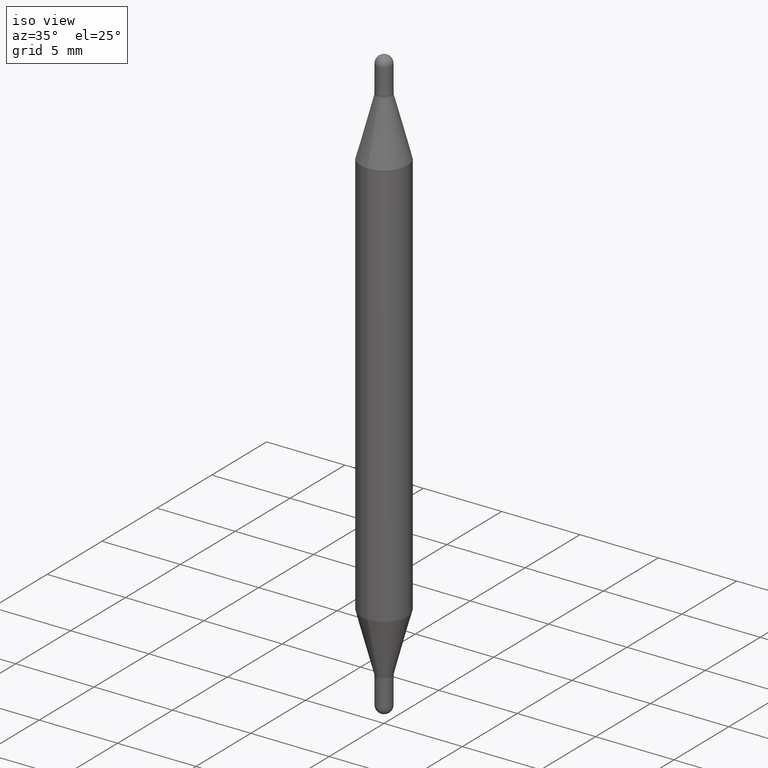
[diagram: clean part render]
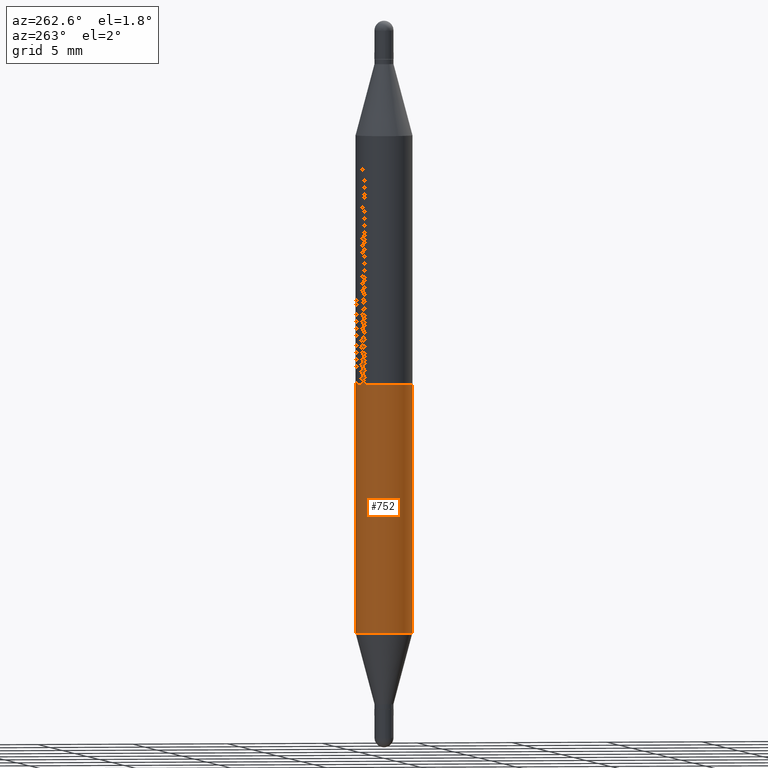
[diagram: tour spotlight — one face highlighted and labeled with its STEP entity id]
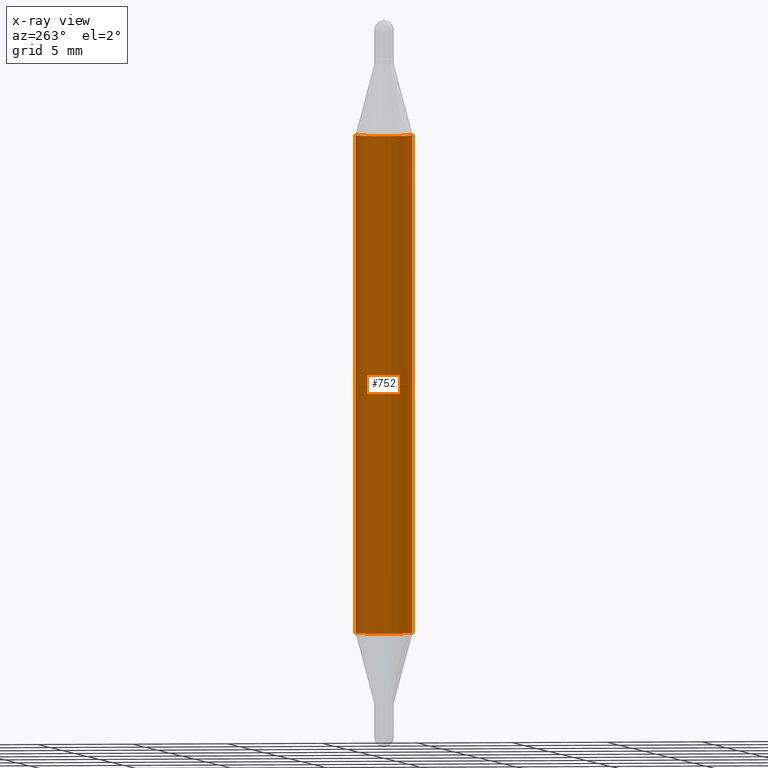
[diagram: x-ray of the same camera — body ghosted, this tour face saturated]
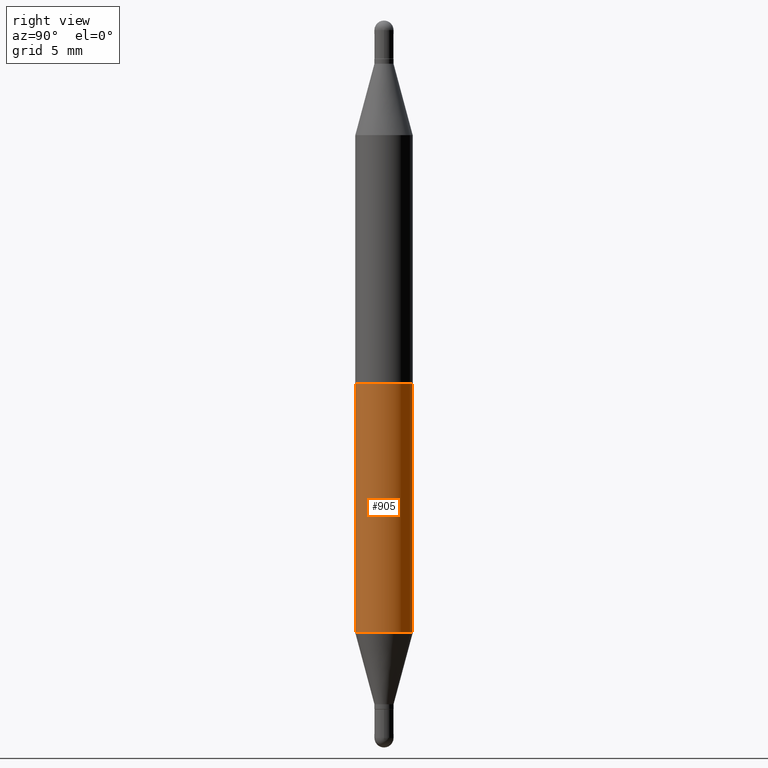
[diagram: tour spotlight — one face highlighted and labeled with its STEP entity id]
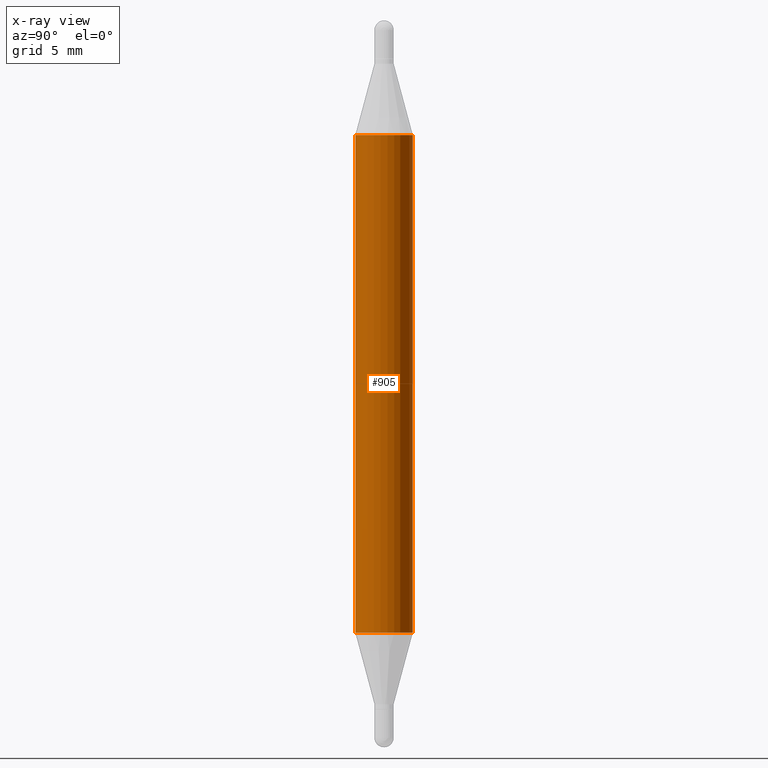
[diagram: x-ray of the same camera — body ghosted, this tour face saturated]
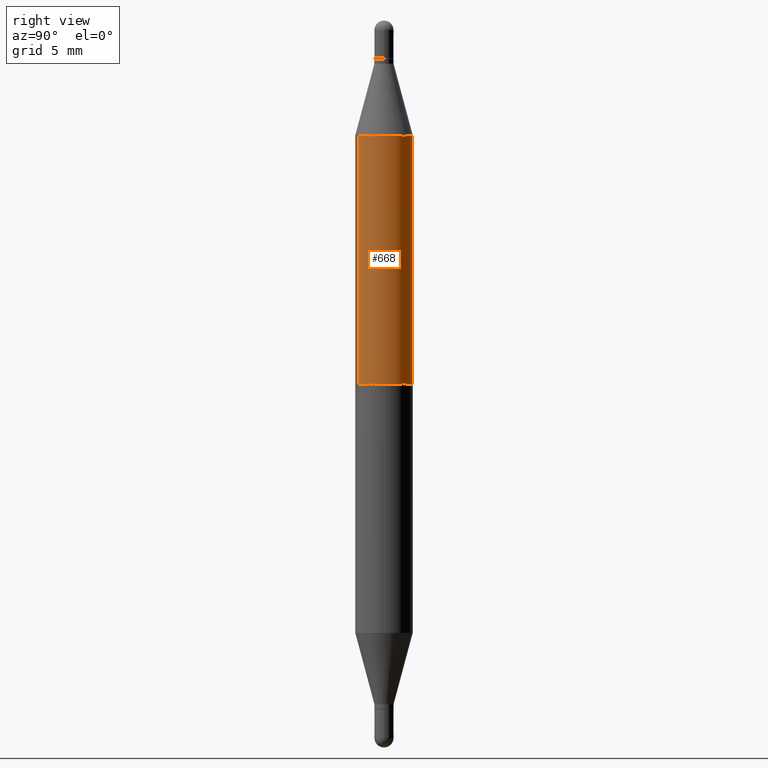
[diagram: tour spotlight — one face highlighted and labeled with its STEP entity id]
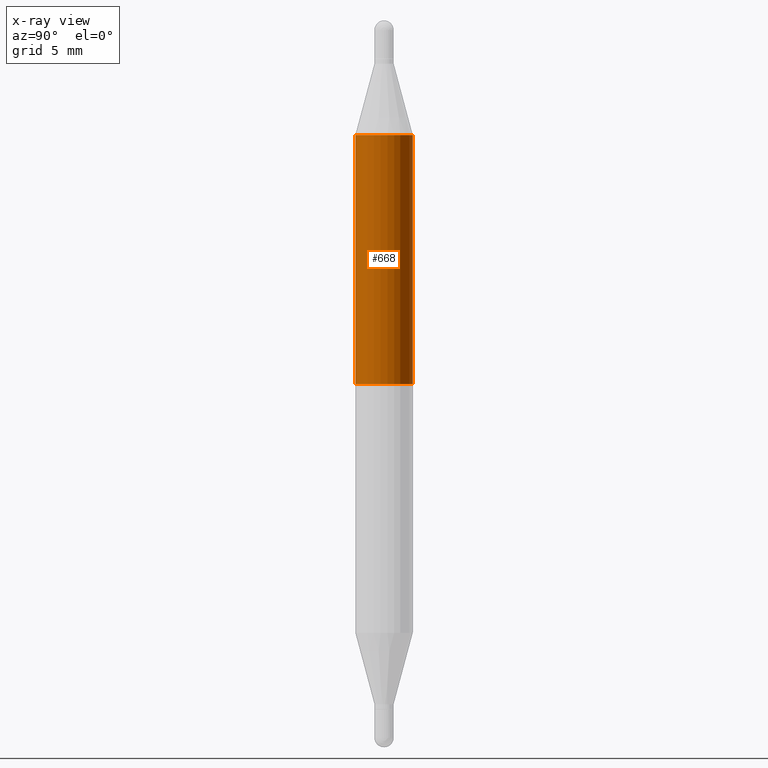
[diagram: x-ray of the same camera — body ghosted, this tour face saturated]
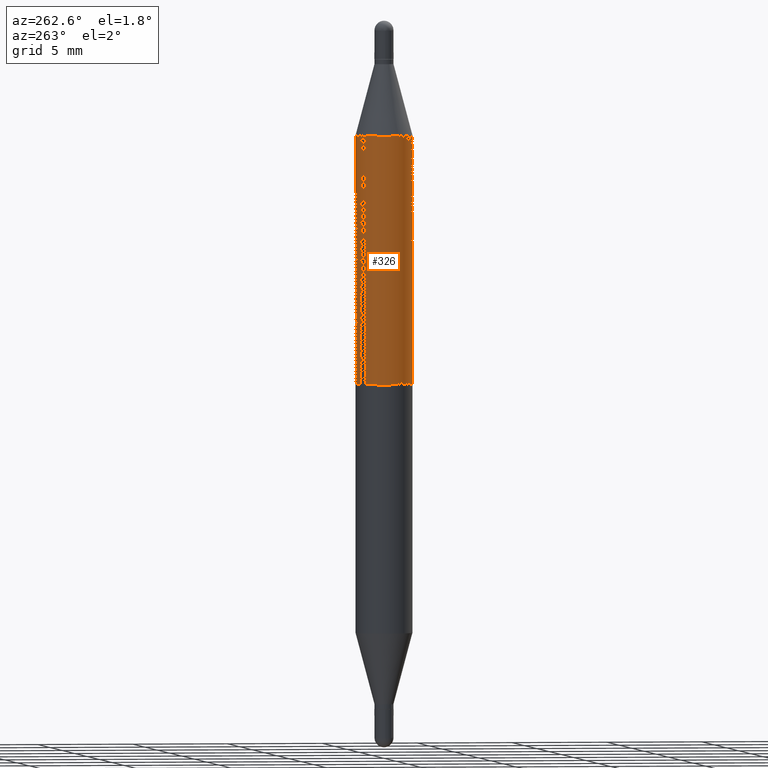
[diagram: tour spotlight — one face highlighted and labeled with its STEP entity id]
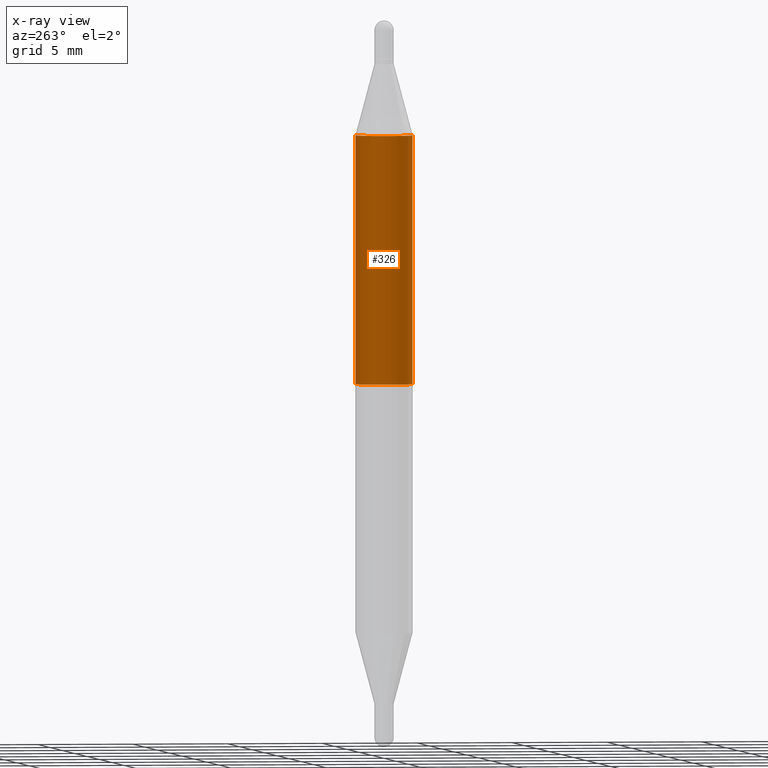
[diagram: x-ray of the same camera — body ghosted, this tour face saturated]
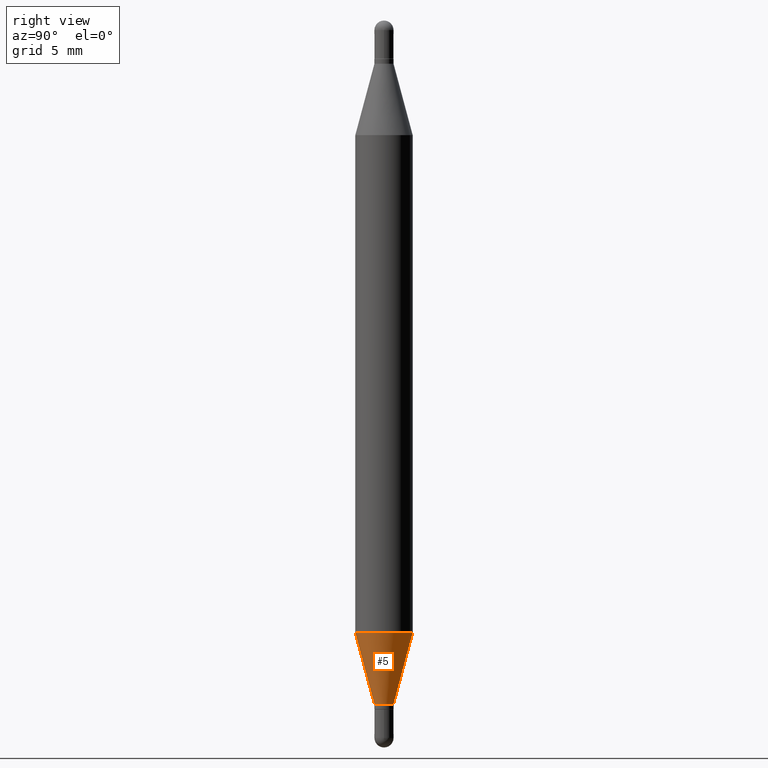
[diagram: tour spotlight — one face highlighted and labeled with its STEP entity id]
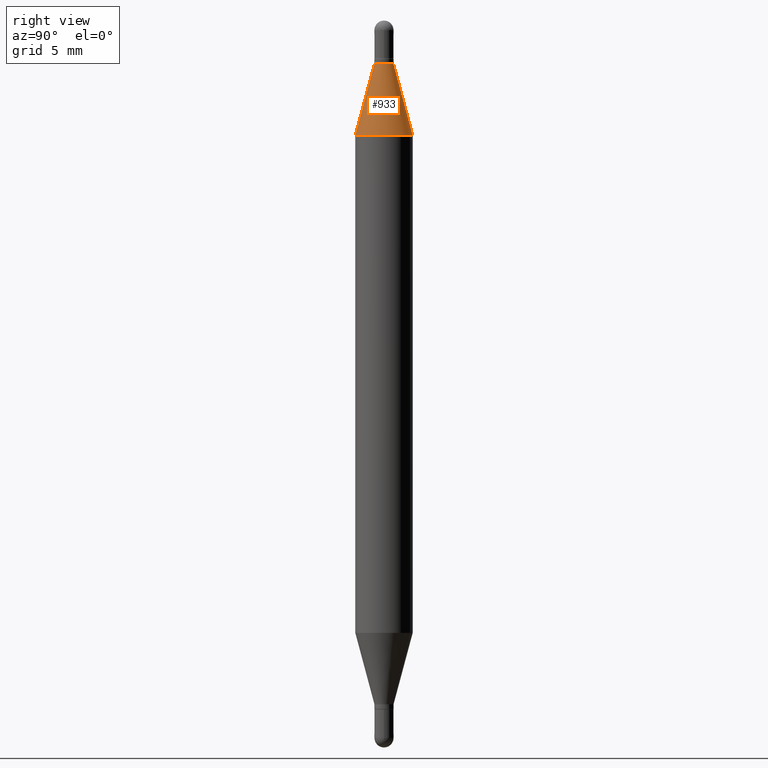
[diagram: tour spotlight — one face highlighted and labeled with its STEP entity id]
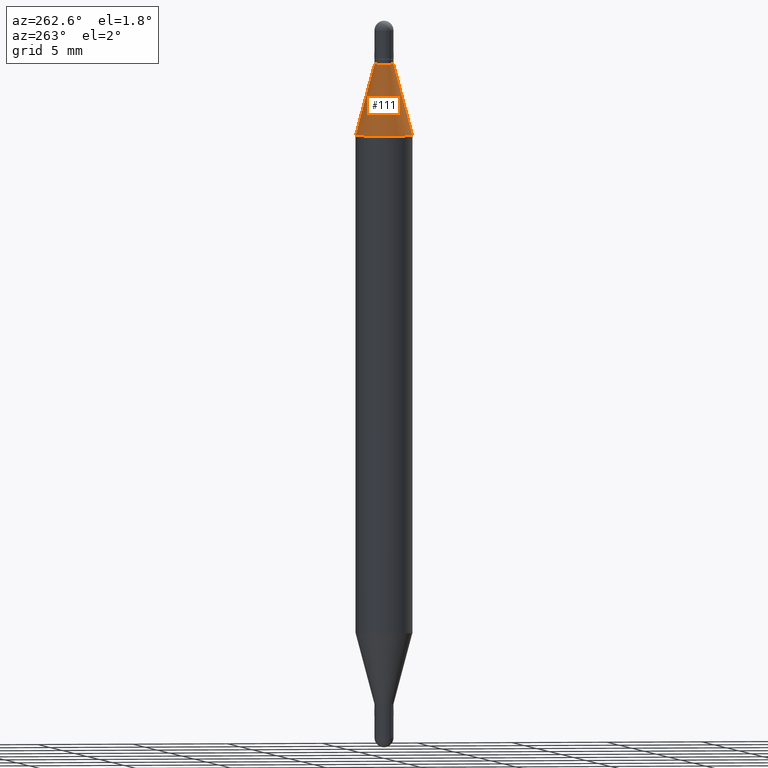
[diagram: tour spotlight — one face highlighted and labeled with its STEP entity id]
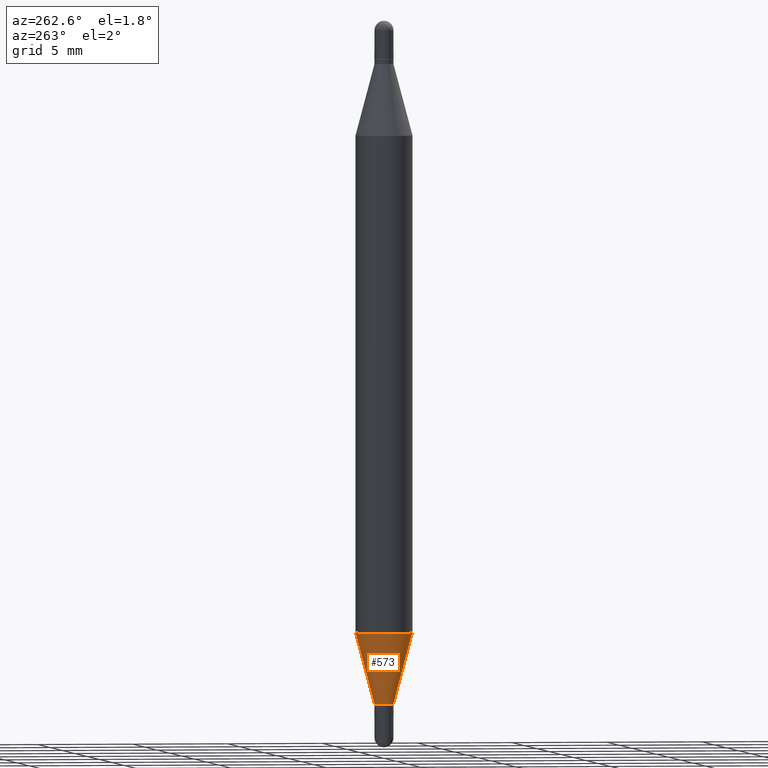
[diagram: tour spotlight — one face highlighted and labeled with its STEP entity id]
A machine part: a face-by-face anatomy tour. The part has 41 B-rep faces; the first image is the clean iso view, then the 8 largest visible faces are spotlighted one at a time (largest first), each with its STEP entity span.

Face 1 — auxiliary view, entity #752. An x-ray twin of the same camera follows (body ghosted, this face saturated) — the face is partly hidden behind the body. In plain terms, the highlighted cylindrical surface (edge-blend (fillet) strip) has radius 1.4999 mm, axis along (-0, -0, -1).
Definition (entity closure, byte-faithful):
#11 = VECTOR ( 'NONE', #577, 39.37007874015748143 ) ;
#42 = ORIENTED_EDGE ( 'NONE', *, *, #1108, .T. ) ;
#67 = CIRCLE ( 'NONE', #122, 0.05905000000000000526 ) ;
#73 = ORIENTED_EDGE ( 'NONE', *, *, #435, .F. ) ;
#89 = EDGE_CURVE ( 'NONE', #344, #598, #229, .T. ) ;
#122 = AXIS2_PLACEMENT_3D ( 'NONE', #245, #333, #937 ) ;
#129 = EDGE_LOOP ( 'NONE', ( #73, #1044, #42, #150 ) ) ;
#150 = ORIENTED_EDGE ( 'NONE', *, *, #1054, .F. ) ;
#174 = DIRECTION ( 'NONE',  ( -6.982962677686265922E-15, -1.000000000000000000, 4.626330217890367758E-15 ) ) ;
#229 = LINE ( 'NONE', #1010, #11 ) ;
#232 = CARTESIAN_POINT ( 'NONE',  ( -4.123439461173741313E-16, -0.05905000000000523025, -1.496099999999999541 ) ) ;
#245 = CARTESIAN_POINT ( 'NONE',  ( 3.090553871874308525E-29, -4.387706119684229596E-15, -1.260243800722164131 ) ) ;
#333 = DIRECTION ( 'NONE',  ( -2.452346022335767416E-29, 3.481632773888607425E-15, 1.000000000000000000 ) ) ;
#344 = VERTEX_POINT ( 'NONE', #769 ) ;
#345 = CYLINDRICAL_SURFACE ( 'NONE', #1039, 0.05905000000000001914 ) ;
#348 = CARTESIAN_POINT ( 'NONE',  ( 0.000000000000000000, -5.214728217544379106E-15, -1.496099999999999985 ) ) ;
#389 = CARTESIAN_POINT ( 'NONE',  ( 4.051124067684272586E-16, 0.05904999999999561988, -1.260243800722164353 ) ) ;
#434 = AXIS2_PLACEMENT_3D ( 'NONE', #531, #978, #875 ) ;
#435 = EDGE_CURVE ( 'NONE', #344, #949, #906, .T. ) ;
#531 = CARTESIAN_POINT ( 'NONE',  ( 3.090553871874308525E-29, -8.171540637024477937E-16, -0.2358561992778358263 ) ) ;
#577 = DIRECTION ( 'NONE',  ( -2.452346022335767416E-29, -3.489463031932366411E-15, -1.000000000000000000 ) ) ;
#596 = DIRECTION ( 'NONE',  ( -2.452346022335767416E-29, -3.489463031932366411E-15, -1.000000000000000000 ) ) ;
#598 = VERTEX_POINT ( 'NONE', #389 ) ;
#752 = ADVANCED_FACE ( 'NONE', ( #839 ), #345, .T. ) ;
#769 = CARTESIAN_POINT ( 'NONE',  ( 4.051124067684397324E-16, 0.05904999999999917953, -0.2358561992778360206 ) ) ;
#839 = FACE_OUTER_BOUND ( 'NONE', #129, .T. ) ;
#875 = DIRECTION ( 'NONE',  ( -6.982962677686265922E-15, -1.000000000000000000, 3.469747663417777002E-15 ) ) ;
#897 = LINE ( 'NONE', #232, #950 ) ;
#906 = CIRCLE ( 'NONE', #434, 0.05905000000000000526 ) ;
#912 = DIRECTION ( 'NONE',  ( -2.452346022335767416E-29, -3.489463031932366411E-15, -1.000000000000000000 ) ) ;
#937 = DIRECTION ( 'NONE',  ( -6.982962677686265922E-15, -1.000000000000000000, 4.626330217890369336E-15 ) ) ;
#949 = VERTEX_POINT ( 'NONE', #1089 ) ;
#950 = VECTOR ( 'NONE', #912, 39.37007874015748143 ) ;
#978 = DIRECTION ( 'NONE',  ( 2.452346022335767416E-29, 3.489463031932366411E-15, 1.000000000000000000 ) ) ;
#1010 = CARTESIAN_POINT ( 'NONE',  ( 4.051124067684090161E-16, 0.05904999999999480109, -1.496100000000000207 ) ) ;
#1023 = VERTEX_POINT ( 'NONE', #1093 ) ;
#1039 = AXIS2_PLACEMENT_3D ( 'NONE', #348, #596, #174 ) ;
#1044 = ORIENTED_EDGE ( 'NONE', *, *, #89, .T. ) ;
#1054 = EDGE_CURVE ( 'NONE', #949, #1023, #897, .T. ) ;
#1089 = CARTESIAN_POINT ( 'NONE',  ( -4.123439461173431192E-16, -0.05905000000000081711, -0.2358561992778356042 ) ) ;
#1093 = CARTESIAN_POINT ( 'NONE',  ( -4.123439461173431685E-16, -0.05905000000000439758, -1.260243800722163909 ) ) ;
#1108 = EDGE_CURVE ( 'NONE', #598, #1023, #67, .T. ) ;

Face 2 — right view, entity #905. An x-ray twin of the same camera follows (body ghosted, this face saturated) — the face is partly hidden behind the body. In plain terms, the highlighted cylindrical surface (edge-blend (fillet) strip) has radius 1.4999 mm, axis along (-0, -0, -1).
Definition (entity closure, byte-faithful):
#11 = VECTOR ( 'NONE', #577, 39.37007874015748143 ) ;
#28 = CIRCLE ( 'NONE', #366, 0.05905000000000000526 ) ;
#43 = ORIENTED_EDGE ( 'NONE', *, *, #1054, .T. ) ;
#89 = EDGE_CURVE ( 'NONE', #344, #598, #229, .T. ) ;
#115 = CYLINDRICAL_SURFACE ( 'NONE', #350, 0.05905000000000001914 ) ;
#180 = ORIENTED_EDGE ( 'NONE', *, *, #560, .T. ) ;
#183 = AXIS2_PLACEMENT_3D ( 'NONE', #249, #869, #584 ) ;
#229 = LINE ( 'NONE', #1010, #11 ) ;
#232 = CARTESIAN_POINT ( 'NONE',  ( -4.123439461173741313E-16, -0.05905000000000523025, -1.496099999999999541 ) ) ;
#249 = CARTESIAN_POINT ( 'NONE',  ( 3.090553871874308525E-29, -8.171540637024477937E-16, -0.2358561992778358263 ) ) ;
#279 = FACE_OUTER_BOUND ( 'NONE', #677, .T. ) ;
#344 = VERTEX_POINT ( 'NONE', #769 ) ;
#350 = AXIS2_PLACEMENT_3D ( 'NONE', #519, #433, #802 ) ;
#366 = AXIS2_PLACEMENT_3D ( 'NONE', #474, #827, #814 ) ;
#389 = CARTESIAN_POINT ( 'NONE',  ( 4.051124067684272586E-16, 0.05904999999999561988, -1.260243800722164353 ) ) ;
#433 = DIRECTION ( 'NONE',  ( -2.452346022335767416E-29, -3.489463031932366411E-15, -1.000000000000000000 ) ) ;
#465 = ORIENTED_EDGE ( 'NONE', *, *, #1096, .F. ) ;
#474 = CARTESIAN_POINT ( 'NONE',  ( 3.090553871874308525E-29, -4.387706119684229596E-15, -1.260243800722164131 ) ) ;
#519 = CARTESIAN_POINT ( 'NONE',  ( 0.000000000000000000, -5.214728217544379106E-15, -1.496099999999999985 ) ) ;
#560 = EDGE_CURVE ( 'NONE', #1023, #598, #28, .T. ) ;
#577 = DIRECTION ( 'NONE',  ( -2.452346022335767416E-29, -3.489463031932366411E-15, -1.000000000000000000 ) ) ;
#584 = DIRECTION ( 'NONE',  ( -6.982962677686265922E-15, -1.000000000000000000, 3.469747663417777002E-15 ) ) ;
#598 = VERTEX_POINT ( 'NONE', #389 ) ;
#602 = CIRCLE ( 'NONE', #183, 0.05905000000000000526 ) ;
#677 = EDGE_LOOP ( 'NONE', ( #1074, #465, #43, #180 ) ) ;
#769 = CARTESIAN_POINT ( 'NONE',  ( 4.051124067684397324E-16, 0.05904999999999917953, -0.2358561992778360206 ) ) ;
#802 = DIRECTION ( 'NONE',  ( -6.982962677686265922E-15, -1.000000000000000000, 4.626330217890367758E-15 ) ) ;
#814 = DIRECTION ( 'NONE',  ( -6.982962677686265922E-15, -1.000000000000000000, 4.626330217890369336E-15 ) ) ;
#827 = DIRECTION ( 'NONE',  ( -2.452346022335767416E-29, 3.481632773888607425E-15, 1.000000000000000000 ) ) ;
#869 = DIRECTION ( 'NONE',  ( 2.452346022335767416E-29, 3.489463031932366411E-15, 1.000000000000000000 ) ) ;
#897 = LINE ( 'NONE', #232, #950 ) ;
#905 = ADVANCED_FACE ( 'NONE', ( #279 ), #115, .T. ) ;
#912 = DIRECTION ( 'NONE',  ( -2.452346022335767416E-29, -3.489463031932366411E-15, -1.000000000000000000 ) ) ;
#949 = VERTEX_POINT ( 'NONE', #1089 ) ;
#950 = VECTOR ( 'NONE', #912, 39.37007874015748143 ) ;
#1010 = CARTESIAN_POINT ( 'NONE',  ( 4.051124067684090161E-16, 0.05904999999999480109, -1.496100000000000207 ) ) ;
#1023 = VERTEX_POINT ( 'NONE', #1093 ) ;
#1054 = EDGE_CURVE ( 'NONE', #949, #1023, #897, .T. ) ;
#1074 = ORIENTED_EDGE ( 'NONE', *, *, #89, .F. ) ;
#1089 = CARTESIAN_POINT ( 'NONE',  ( -4.123439461173431192E-16, -0.05905000000000081711, -0.2358561992778356042 ) ) ;
#1093 = CARTESIAN_POINT ( 'NONE',  ( -4.123439461173431685E-16, -0.05905000000000439758, -1.260243800722163909 ) ) ;
#1096 = EDGE_CURVE ( 'NONE', #949, #344, #602, .T. ) ;

Face 3 — right view, entity #668. An x-ray twin of the same camera follows (body ghosted, this face saturated) — the face is partly hidden behind the body. In plain terms, the highlighted cylindrical surface (edge-blend (fillet) strip) has radius 1.4999 mm, axis along (-0, -0, -1).
Definition (entity closure, byte-faithful):
#1 = DIRECTION ( 'NONE',  ( -2.452346022335767416E-29, -3.489463031932366411E-15, -1.000000000000000000 ) ) ;
#6 = DIRECTION ( 'NONE',  ( 2.452346022335767416E-29, 3.489463031932366411E-15, 1.000000000000000000 ) ) ;
#250 = CARTESIAN_POINT ( 'NONE',  ( 4.051124067684397324E-16, 0.05904999999999917953, -0.2358561992778360206 ) ) ;
#259 = ORIENTED_EDGE ( 'NONE', *, *, #1036, .F. ) ;
#275 = EDGE_CURVE ( 'NONE', #551, #747, #1058, .T. ) ;
#296 = CARTESIAN_POINT ( 'NONE',  ( -4.123439461173741313E-16, -0.05905000000000523025, -1.496099999999999541 ) ) ;
#436 = CARTESIAN_POINT ( 'NONE',  ( 3.090553871874308525E-29, -8.171540637024477937E-16, -0.2358561992778358263 ) ) ;
#492 = CYLINDRICAL_SURFACE ( 'NONE', #798, 0.05905000000000001914 ) ;
#495 = DIRECTION ( 'NONE',  ( -6.982962677686265922E-15, -1.000000000000000000, 4.626330217890367758E-15 ) ) ;
#518 = ORIENTED_EDGE ( 'NONE', *, *, #859, .T. ) ;
#520 = AXIS2_PLACEMENT_3D ( 'NONE', #436, #6, #782 ) ;
#529 = DIRECTION ( 'NONE',  ( -2.452346022335767416E-29, -3.489463031932366411E-15, -1.000000000000000000 ) ) ;
#538 = ORIENTED_EDGE ( 'NONE', *, *, #275, .F. ) ;
#551 = VERTEX_POINT ( 'NONE', #1002 ) ;
#588 = CARTESIAN_POINT ( 'NONE',  ( 4.051124067684335694E-16, 0.05904999999999741012, -0.7480500000000002148 ) ) ;
#650 = CARTESIAN_POINT ( 'NONE',  ( 4.051124067684090161E-16, 0.05904999999999480109, -1.496100000000000207 ) ) ;
#652 = EDGE_CURVE ( 'NONE', #801, #1113, #655, .T. ) ;
#655 = CIRCLE ( 'NONE', #1097, 0.05905000000000001914 ) ;
#668 = ADVANCED_FACE ( 'NONE', ( #850 ), #492, .T. ) ;
#693 = CARTESIAN_POINT ( 'NONE',  ( -4.123439461173557903E-16, -0.05905000000000261429, -0.7480499999999996597 ) ) ;
#726 = LINE ( 'NONE', #650, #986 ) ;
#747 = VERTEX_POINT ( 'NONE', #250 ) ;
#782 = DIRECTION ( 'NONE',  ( -6.982962677686265922E-15, -1.000000000000000000, 3.469747663417777002E-15 ) ) ;
#798 = AXIS2_PLACEMENT_3D ( 'NONE', #1041, #1, #495 ) ;
#801 = VERTEX_POINT ( 'NONE', #588 ) ;
#850 = FACE_OUTER_BOUND ( 'NONE', #976, .T. ) ;
#859 = EDGE_CURVE ( 'NONE', #551, #1113, #1045, .T. ) ;
#903 = CARTESIAN_POINT ( 'NONE',  ( 1.834477442008270645E-29, -2.604435396507372590E-15, -0.7480499999999999927 ) ) ;
#918 = DIRECTION ( 'NONE',  ( -2.452346022335767416E-29, -3.489463031932366411E-15, -1.000000000000000000 ) ) ;
#919 = DIRECTION ( 'NONE',  ( 0.000000000000000000, 1.000000000000000000, -4.626330217890367758E-15 ) ) ;
#969 = ORIENTED_EDGE ( 'NONE', *, *, #652, .F. ) ;
#976 = EDGE_LOOP ( 'NONE', ( #259, #538, #518, #969 ) ) ;
#986 = VECTOR ( 'NONE', #918, 39.37007874015748143 ) ;
#1002 = CARTESIAN_POINT ( 'NONE',  ( -4.123439461173431192E-16, -0.05905000000000081711, -0.2358561992778356042 ) ) ;
#1036 = EDGE_CURVE ( 'NONE', #747, #801, #726, .T. ) ;
#1041 = CARTESIAN_POINT ( 'NONE',  ( 0.000000000000000000, -5.214728217544379106E-15, -1.496099999999999985 ) ) ;
#1045 = LINE ( 'NONE', #296, #1056 ) ;
#1056 = VECTOR ( 'NONE', #529, 39.37007874015748143 ) ;
#1058 = CIRCLE ( 'NONE', #520, 0.05905000000000000526 ) ;
#1079 = DIRECTION ( 'NONE',  ( -0.000000000000000000, -3.485547902910486918E-15, -1.000000000000000000 ) ) ;
#1097 = AXIS2_PLACEMENT_3D ( 'NONE', #903, #1079, #919 ) ;
#1113 = VERTEX_POINT ( 'NONE', #693 ) ;

Face 4 — auxiliary view, entity #326. An x-ray twin of the same camera follows (body ghosted, this face saturated) — the face is partly hidden behind the body. In plain terms, the highlighted cylindrical surface (edge-blend (fillet) strip) has radius 1.4999 mm, axis along (-0, -0, -1).
Definition (entity closure, byte-faithful):
#12 = DIRECTION ( 'NONE',  ( 0.000000000000000000, 1.000000000000000000, -4.626330217890367758E-15 ) ) ;
#16 = ORIENTED_EDGE ( 'NONE', *, *, #899, .F. ) ;
#154 = ORIENTED_EDGE ( 'NONE', *, *, #859, .F. ) ;
#167 = DIRECTION ( 'NONE',  ( -2.452346022335767416E-29, -3.489463031932366411E-15, -1.000000000000000000 ) ) ;
#216 = AXIS2_PLACEMENT_3D ( 'NONE', #330, #938, #857 ) ;
#234 = CIRCLE ( 'NONE', #336, 0.05905000000000001914 ) ;
#250 = CARTESIAN_POINT ( 'NONE',  ( 4.051124067684397324E-16, 0.05904999999999917953, -0.2358561992778360206 ) ) ;
#263 = FACE_OUTER_BOUND ( 'NONE', #1037, .T. ) ;
#296 = CARTESIAN_POINT ( 'NONE',  ( -4.123439461173741313E-16, -0.05905000000000523025, -1.496099999999999541 ) ) ;
#326 = ADVANCED_FACE ( 'NONE', ( #263 ), #765, .T. ) ;
#330 = CARTESIAN_POINT ( 'NONE',  ( 3.090553871874308525E-29, -8.171540637024477937E-16, -0.2358561992778358263 ) ) ;
#336 = AXIS2_PLACEMENT_3D ( 'NONE', #375, #1055, #12 ) ;
#375 = CARTESIAN_POINT ( 'NONE',  ( 1.834477442008270645E-29, -2.604435396507372590E-15, -0.7480499999999999927 ) ) ;
#477 = ORIENTED_EDGE ( 'NONE', *, *, #776, .F. ) ;
#497 = DIRECTION ( 'NONE',  ( -6.982962677686265922E-15, -1.000000000000000000, 4.626330217890367758E-15 ) ) ;
#529 = DIRECTION ( 'NONE',  ( -2.452346022335767416E-29, -3.489463031932366411E-15, -1.000000000000000000 ) ) ;
#551 = VERTEX_POINT ( 'NONE', #1002 ) ;
#588 = CARTESIAN_POINT ( 'NONE',  ( 4.051124067684335694E-16, 0.05904999999999741012, -0.7480500000000002148 ) ) ;
#650 = CARTESIAN_POINT ( 'NONE',  ( 4.051124067684090161E-16, 0.05904999999999480109, -1.496100000000000207 ) ) ;
#679 = CARTESIAN_POINT ( 'NONE',  ( 0.000000000000000000, -5.214728217544379106E-15, -1.496099999999999985 ) ) ;
#693 = CARTESIAN_POINT ( 'NONE',  ( -4.123439461173557903E-16, -0.05905000000000261429, -0.7480499999999996597 ) ) ;
#726 = LINE ( 'NONE', #650, #986 ) ;
#747 = VERTEX_POINT ( 'NONE', #250 ) ;
#765 = CYLINDRICAL_SURFACE ( 'NONE', #927, 0.05905000000000001914 ) ;
#776 = EDGE_CURVE ( 'NONE', #747, #551, #818, .T. ) ;
#801 = VERTEX_POINT ( 'NONE', #588 ) ;
#818 = CIRCLE ( 'NONE', #216, 0.05905000000000000526 ) ;
#825 = ORIENTED_EDGE ( 'NONE', *, *, #1036, .T. ) ;
#857 = DIRECTION ( 'NONE',  ( -6.982962677686265922E-15, -1.000000000000000000, 3.469747663417777002E-15 ) ) ;
#859 = EDGE_CURVE ( 'NONE', #551, #1113, #1045, .T. ) ;
#899 = EDGE_CURVE ( 'NONE', #1113, #801, #234, .T. ) ;
#918 = DIRECTION ( 'NONE',  ( -2.452346022335767416E-29, -3.489463031932366411E-15, -1.000000000000000000 ) ) ;
#927 = AXIS2_PLACEMENT_3D ( 'NONE', #679, #167, #497 ) ;
#938 = DIRECTION ( 'NONE',  ( 2.452346022335767416E-29, 3.489463031932366411E-15, 1.000000000000000000 ) ) ;
#986 = VECTOR ( 'NONE', #918, 39.37007874015748143 ) ;
#1002 = CARTESIAN_POINT ( 'NONE',  ( -4.123439461173431192E-16, -0.05905000000000081711, -0.2358561992778356042 ) ) ;
#1036 = EDGE_CURVE ( 'NONE', #747, #801, #726, .T. ) ;
#1037 = EDGE_LOOP ( 'NONE', ( #477, #825, #16, #154 ) ) ;
#1045 = LINE ( 'NONE', #296, #1056 ) ;
#1055 = DIRECTION ( 'NONE',  ( -0.000000000000000000, -3.485547902910486918E-15, -1.000000000000000000 ) ) ;
#1056 = VECTOR ( 'NONE', #529, 39.37007874015748143 ) ;
#1113 = VERTEX_POINT ( 'NONE', #693 ) ;

Face 5 — right view, entity #5. In plain terms, the highlighted conical surface has half-angle 15 deg.
Definition (entity closure, byte-faithful):
#5 = ADVANCED_FACE ( 'NONE', ( #117 ), #1080, .T. ) ;
#22 = EDGE_CURVE ( 'NONE', #306, #598, #800, .T. ) ;
#28 = CIRCLE ( 'NONE', #366, 0.05905000000000000526 ) ;
#114 = EDGE_LOOP ( 'NONE', ( #221, #721, #957, #1015 ) ) ;
#117 = FACE_OUTER_BOUND ( 'NONE', #114, .T. ) ;
#221 = ORIENTED_EDGE ( 'NONE', *, *, #1016, .T. ) ;
#284 = VECTOR ( 'NONE', #414, 39.37007874015748143 ) ;
#306 = VERTEX_POINT ( 'NONE', #952 ) ;
#307 = EDGE_CURVE ( 'NONE', #942, #1023, #935, .T. ) ;
#366 = AXIS2_PLACEMENT_3D ( 'NONE', #474, #827, #814 ) ;
#389 = CARTESIAN_POINT ( 'NONE',  ( 4.051124067684272586E-16, 0.05904999999999561988, -1.260243800722164353 ) ) ;
#414 = DIRECTION ( 'NONE',  ( -1.807323732225330534E-15, -0.2588190451025182415, 0.9659258262890689783 ) ) ;
#438 = AXIS2_PLACEMENT_3D ( 'NONE', #1060, #638, #988 ) ;
#473 = VECTOR ( 'NONE', #792, 39.37007874015748143 ) ;
#474 = CARTESIAN_POINT ( 'NONE',  ( 3.090553871874308525E-29, -4.387706119684229596E-15, -1.260243800722164131 ) ) ;
#560 = EDGE_CURVE ( 'NONE', #1023, #598, #28, .T. ) ;
#561 = CARTESIAN_POINT ( 'NONE',  ( -1.375643647503831486E-16, -0.01970000000000464435, -1.407099999999999795 ) ) ;
#569 = DIRECTION ( 'NONE',  ( -2.452346022335767416E-29, 3.481632773888607425E-15, 1.000000000000000000 ) ) ;
#598 = VERTEX_POINT ( 'NONE', #389 ) ;
#603 = CARTESIAN_POINT ( 'NONE',  ( -1.375643647503831486E-16, -0.01970000000000464435, -1.407099999999999795 ) ) ;
#638 = DIRECTION ( 'NONE',  ( -2.452346022335767416E-29, 3.481632773888607425E-15, 1.000000000000000000 ) ) ;
#721 = ORIENTED_EDGE ( 'NONE', *, *, #22, .T. ) ;
#736 = CARTESIAN_POINT ( 'NONE',  ( 3.450696088028658028E-29, -4.899005476138658328E-15, -1.407099999999999795 ) ) ;
#762 = AXIS2_PLACEMENT_3D ( 'NONE', #736, #569, #1008 ) ;
#792 = DIRECTION ( 'NONE',  ( 1.839019923739600710E-15, 0.2588190451025250138, 0.9659258262890670910 ) ) ;
#800 = LINE ( 'NONE', #1050, #473 ) ;
#814 = DIRECTION ( 'NONE',  ( -6.982962677686265922E-15, -1.000000000000000000, 4.626330217890369336E-15 ) ) ;
#827 = DIRECTION ( 'NONE',  ( -2.452346022335767416E-29, 3.481632773888607425E-15, 1.000000000000000000 ) ) ;
#930 = CIRCLE ( 'NONE', #762, 0.01969999999999974549 ) ;
#935 = LINE ( 'NONE', #603, #284 ) ;
#942 = VERTEX_POINT ( 'NONE', #561 ) ;
#952 = CARTESIAN_POINT ( 'NONE',  ( 1.399769189447726628E-16, 0.01969999999999484663, -1.407099999999999795 ) ) ;
#957 = ORIENTED_EDGE ( 'NONE', *, *, #560, .F. ) ;
#988 = DIRECTION ( 'NONE',  ( -6.982962677686265922E-15, -1.000000000000000000, 0.000000000000000000 ) ) ;
#1008 = DIRECTION ( 'NONE',  ( -6.982962677686265922E-15, -1.000000000000000000, 0.000000000000000000 ) ) ;
#1015 = ORIENTED_EDGE ( 'NONE', *, *, #307, .F. ) ;
#1016 = EDGE_CURVE ( 'NONE', #942, #306, #930, .T. ) ;
#1023 = VERTEX_POINT ( 'NONE', #1093 ) ;
#1050 = CARTESIAN_POINT ( 'NONE',  ( 1.399769189447724162E-16, 0.01969999999999484663, -1.407099999999999795 ) ) ;
#1060 = CARTESIAN_POINT ( 'NONE',  ( 3.450696088028658028E-29, -4.899005476138658328E-15, -1.407099999999999795 ) ) ;
#1080 = CONICAL_SURFACE ( 'NONE', #438, 0.01969999999999974549, 0.2617993877991502960 ) ;
#1093 = CARTESIAN_POINT ( 'NONE',  ( -4.123439461173431685E-16, -0.05905000000000439758, -1.260243800722163909 ) ) ;

Face 6 — right view, entity #933. In plain terms, the highlighted conical surface has half-angle 15 deg.
Definition (entity closure, byte-faithful):
#6 = DIRECTION ( 'NONE',  ( 2.452346022335767416E-29, 3.489463031932366411E-15, 1.000000000000000000 ) ) ;
#41 = EDGE_CURVE ( 'NONE', #666, #852, #491, .T. ) ;
#65 = VECTOR ( 'NONE', #681, 39.37007874015748143 ) ;
#132 = CARTESIAN_POINT ( 'NONE',  ( -1.375643647503831486E-16, -0.01970000000000004733, -0.08899999999999999578 ) ) ;
#192 = DIRECTION ( 'NONE',  ( -6.982962677686265922E-15, -1.000000000000000000, 3.466812174700886453E-15 ) ) ;
#195 = AXIS2_PLACEMENT_3D ( 'NONE', #289, #373, #710 ) ;
#250 = CARTESIAN_POINT ( 'NONE',  ( 4.051124067684397324E-16, 0.05904999999999917953, -0.2358561992778360206 ) ) ;
#275 = EDGE_CURVE ( 'NONE', #551, #747, #1058, .T. ) ;
#276 = LINE ( 'NONE', #778, #403 ) ;
#285 = CONICAL_SURFACE ( 'NONE', #928, 0.01969999999999974549, 0.2617993877991502960 ) ;
#289 = CARTESIAN_POINT ( 'NONE',  ( 3.450696088028658028E-29, -3.047047853123464456E-16, -0.08900000000000006517 ) ) ;
#354 = FACE_OUTER_BOUND ( 'NONE', #1087, .T. ) ;
#373 = DIRECTION ( 'NONE',  ( 2.452346022335767416E-29, 3.489463031932366411E-15, 1.000000000000000000 ) ) ;
#403 = VECTOR ( 'NONE', #959, 39.37007874015748143 ) ;
#425 = CARTESIAN_POINT ( 'NONE',  ( -1.375643647503831486E-16, -0.01970000000000004733, -0.08899999999999999578 ) ) ;
#436 = CARTESIAN_POINT ( 'NONE',  ( 3.090553871874308525E-29, -8.171540637024477937E-16, -0.2358561992778358263 ) ) ;
#491 = CIRCLE ( 'NONE', #195, 0.01969999999999974549 ) ;
#520 = AXIS2_PLACEMENT_3D ( 'NONE', #436, #6, #782 ) ;
#551 = VERTEX_POINT ( 'NONE', #1002 ) ;
#604 = ORIENTED_EDGE ( 'NONE', *, *, #803, .T. ) ;
#629 = CARTESIAN_POINT ( 'NONE',  ( 3.450696088028658028E-29, -3.047047853123464456E-16, -0.08900000000000006517 ) ) ;
#631 = ORIENTED_EDGE ( 'NONE', *, *, #886, .F. ) ;
#654 = ORIENTED_EDGE ( 'NONE', *, *, #275, .T. ) ;
#666 = VERTEX_POINT ( 'NONE', #132 ) ;
#681 = DIRECTION ( 'NONE',  ( -1.807323732225330534E-15, -0.2588190451025250138, -0.9659258262890670910 ) ) ;
#690 = DIRECTION ( 'NONE',  ( -2.452346022335767416E-29, -3.489463031932366411E-15, -1.000000000000000000 ) ) ;
#710 = DIRECTION ( 'NONE',  ( -6.982962677686265922E-15, -1.000000000000000000, 3.466812174700886453E-15 ) ) ;
#747 = VERTEX_POINT ( 'NONE', #250 ) ;
#768 = LINE ( 'NONE', #425, #65 ) ;
#778 = CARTESIAN_POINT ( 'NONE',  ( 1.351518105561319071E-16, 0.01969999999999944365, -0.08900000000000013456 ) ) ;
#782 = DIRECTION ( 'NONE',  ( -6.982962677686265922E-15, -1.000000000000000000, 3.469747663417777002E-15 ) ) ;
#803 = EDGE_CURVE ( 'NONE', #666, #551, #768, .T. ) ;
#852 = VERTEX_POINT ( 'NONE', #1068 ) ;
#886 = EDGE_CURVE ( 'NONE', #852, #747, #276, .T. ) ;
#928 = AXIS2_PLACEMENT_3D ( 'NONE', #629, #690, #192 ) ;
#933 = ADVANCED_FACE ( 'NONE', ( #354 ), #285, .T. ) ;
#959 = DIRECTION ( 'NONE',  ( 1.775627540710965497E-15, 0.2588190451025182415, -0.9659258262890689783 ) ) ;
#1002 = CARTESIAN_POINT ( 'NONE',  ( -4.123439461173431192E-16, -0.05905000000000081711, -0.2358561992778356042 ) ) ;
#1043 = ORIENTED_EDGE ( 'NONE', *, *, #41, .F. ) ;
#1058 = CIRCLE ( 'NONE', #520, 0.05905000000000000526 ) ;
#1068 = CARTESIAN_POINT ( 'NONE',  ( 1.351518105561320057E-16, 0.01969999999999944365, -0.08900000000000013456 ) ) ;
#1087 = EDGE_LOOP ( 'NONE', ( #631, #1043, #604, #654 ) ) ;

Face 7 — auxiliary view, entity #111. In plain terms, the highlighted conical surface has half-angle 15 deg.
Definition (entity closure, byte-faithful):
#65 = VECTOR ( 'NONE', #681, 39.37007874015748143 ) ;
#110 = DIRECTION ( 'NONE',  ( -6.982962677686265922E-15, -1.000000000000000000, 3.466812174700886453E-15 ) ) ;
#111 = ADVANCED_FACE ( 'NONE', ( #828 ), #700, .T. ) ;
#132 = CARTESIAN_POINT ( 'NONE',  ( -1.375643647503831486E-16, -0.01970000000000004733, -0.08899999999999999578 ) ) ;
#187 = ORIENTED_EDGE ( 'NONE', *, *, #803, .F. ) ;
#216 = AXIS2_PLACEMENT_3D ( 'NONE', #330, #938, #857 ) ;
#250 = CARTESIAN_POINT ( 'NONE',  ( 4.051124067684397324E-16, 0.05904999999999917953, -0.2358561992778360206 ) ) ;
#276 = LINE ( 'NONE', #778, #403 ) ;
#277 = CARTESIAN_POINT ( 'NONE',  ( 3.450696088028658028E-29, -3.047047853123464456E-16, -0.08900000000000006517 ) ) ;
#330 = CARTESIAN_POINT ( 'NONE',  ( 3.090553871874308525E-29, -8.171540637024477937E-16, -0.2358561992778358263 ) ) ;
#356 = ORIENTED_EDGE ( 'NONE', *, *, #476, .F. ) ;
#403 = VECTOR ( 'NONE', #959, 39.37007874015748143 ) ;
#410 = DIRECTION ( 'NONE',  ( -2.452346022335767416E-29, -3.489463031932366411E-15, -1.000000000000000000 ) ) ;
#425 = CARTESIAN_POINT ( 'NONE',  ( -1.375643647503831486E-16, -0.01970000000000004733, -0.08899999999999999578 ) ) ;
#476 = EDGE_CURVE ( 'NONE', #852, #666, #617, .T. ) ;
#485 = DIRECTION ( 'NONE',  ( -6.982962677686265922E-15, -1.000000000000000000, 3.466812174700886453E-15 ) ) ;
#521 = AXIS2_PLACEMENT_3D ( 'NONE', #277, #713, #110 ) ;
#551 = VERTEX_POINT ( 'NONE', #1002 ) ;
#617 = CIRCLE ( 'NONE', #521, 0.01969999999999974549 ) ;
#622 = AXIS2_PLACEMENT_3D ( 'NONE', #644, #410, #485 ) ;
#644 = CARTESIAN_POINT ( 'NONE',  ( 3.450696088028658028E-29, -3.047047853123464456E-16, -0.08900000000000006517 ) ) ;
#666 = VERTEX_POINT ( 'NONE', #132 ) ;
#681 = DIRECTION ( 'NONE',  ( -1.807323732225330534E-15, -0.2588190451025250138, -0.9659258262890670910 ) ) ;
#700 = CONICAL_SURFACE ( 'NONE', #622, 0.01969999999999974549, 0.2617993877991502960 ) ;
#713 = DIRECTION ( 'NONE',  ( 2.452346022335767416E-29, 3.489463031932366411E-15, 1.000000000000000000 ) ) ;
#747 = VERTEX_POINT ( 'NONE', #250 ) ;
#768 = LINE ( 'NONE', #425, #65 ) ;
#770 = ORIENTED_EDGE ( 'NONE', *, *, #886, .T. ) ;
#776 = EDGE_CURVE ( 'NONE', #747, #551, #818, .T. ) ;
#778 = CARTESIAN_POINT ( 'NONE',  ( 1.351518105561319071E-16, 0.01969999999999944365, -0.08900000000000013456 ) ) ;
#803 = EDGE_CURVE ( 'NONE', #666, #551, #768, .T. ) ;
#818 = CIRCLE ( 'NONE', #216, 0.05905000000000000526 ) ;
#828 = FACE_OUTER_BOUND ( 'NONE', #1007, .T. ) ;
#852 = VERTEX_POINT ( 'NONE', #1068 ) ;
#857 = DIRECTION ( 'NONE',  ( -6.982962677686265922E-15, -1.000000000000000000, 3.469747663417777002E-15 ) ) ;
#885 = ORIENTED_EDGE ( 'NONE', *, *, #776, .T. ) ;
#886 = EDGE_CURVE ( 'NONE', #852, #747, #276, .T. ) ;
#938 = DIRECTION ( 'NONE',  ( 2.452346022335767416E-29, 3.489463031932366411E-15, 1.000000000000000000 ) ) ;
#959 = DIRECTION ( 'NONE',  ( 1.775627540710965497E-15, 0.2588190451025182415, -0.9659258262890689783 ) ) ;
#1002 = CARTESIAN_POINT ( 'NONE',  ( -4.123439461173431192E-16, -0.05905000000000081711, -0.2358561992778356042 ) ) ;
#1007 = EDGE_LOOP ( 'NONE', ( #356, #770, #885, #187 ) ) ;
#1068 = CARTESIAN_POINT ( 'NONE',  ( 1.351518105561320057E-16, 0.01969999999999944365, -0.08900000000000013456 ) ) ;

Face 8 — auxiliary view, entity #573. In plain terms, the highlighted conical surface has half-angle 15 deg.
Definition (entity closure, byte-faithful):
#8 = AXIS2_PLACEMENT_3D ( 'NONE', #663, #313, #148 ) ;
#22 = EDGE_CURVE ( 'NONE', #306, #598, #800, .T. ) ;
#50 = EDGE_CURVE ( 'NONE', #306, #942, #640, .T. ) ;
#67 = CIRCLE ( 'NONE', #122, 0.05905000000000000526 ) ;
#122 = AXIS2_PLACEMENT_3D ( 'NONE', #245, #333, #937 ) ;
#130 = ORIENTED_EDGE ( 'NONE', *, *, #307, .T. ) ;
#148 = DIRECTION ( 'NONE',  ( -6.982962677686265922E-15, -1.000000000000000000, 0.000000000000000000 ) ) ;
#175 = CONICAL_SURFACE ( 'NONE', #8, 0.01969999999999974549, 0.2617993877991502960 ) ;
#245 = CARTESIAN_POINT ( 'NONE',  ( 3.090553871874308525E-29, -4.387706119684229596E-15, -1.260243800722164131 ) ) ;
#278 = EDGE_LOOP ( 'NONE', ( #415, #1029, #130, #583 ) ) ;
#284 = VECTOR ( 'NONE', #414, 39.37007874015748143 ) ;
#294 = DIRECTION ( 'NONE',  ( -2.452346022335767416E-29, 3.481632773888607425E-15, 1.000000000000000000 ) ) ;
#306 = VERTEX_POINT ( 'NONE', #952 ) ;
#307 = EDGE_CURVE ( 'NONE', #942, #1023, #935, .T. ) ;
#313 = DIRECTION ( 'NONE',  ( -2.452346022335767416E-29, 3.481632773888607425E-15, 1.000000000000000000 ) ) ;
#322 = DIRECTION ( 'NONE',  ( -6.982962677686265922E-15, -1.000000000000000000, 0.000000000000000000 ) ) ;
#333 = DIRECTION ( 'NONE',  ( -2.452346022335767416E-29, 3.481632773888607425E-15, 1.000000000000000000 ) ) ;
#389 = CARTESIAN_POINT ( 'NONE',  ( 4.051124067684272586E-16, 0.05904999999999561988, -1.260243800722164353 ) ) ;
#414 = DIRECTION ( 'NONE',  ( -1.807323732225330534E-15, -0.2588190451025182415, 0.9659258262890689783 ) ) ;
#415 = ORIENTED_EDGE ( 'NONE', *, *, #22, .F. ) ;
#473 = VECTOR ( 'NONE', #792, 39.37007874015748143 ) ;
#561 = CARTESIAN_POINT ( 'NONE',  ( -1.375643647503831486E-16, -0.01970000000000464435, -1.407099999999999795 ) ) ;
#573 = ADVANCED_FACE ( 'NONE', ( #581 ), #175, .T. ) ;
#581 = FACE_OUTER_BOUND ( 'NONE', #278, .T. ) ;
#583 = ORIENTED_EDGE ( 'NONE', *, *, #1108, .F. ) ;
#598 = VERTEX_POINT ( 'NONE', #389 ) ;
#603 = CARTESIAN_POINT ( 'NONE',  ( -1.375643647503831486E-16, -0.01970000000000464435, -1.407099999999999795 ) ) ;
#640 = CIRCLE ( 'NONE', #820, 0.01969999999999974549 ) ;
#663 = CARTESIAN_POINT ( 'NONE',  ( 3.450696088028658028E-29, -4.899005476138658328E-15, -1.407099999999999795 ) ) ;
#792 = DIRECTION ( 'NONE',  ( 1.839019923739600710E-15, 0.2588190451025250138, 0.9659258262890670910 ) ) ;
#800 = LINE ( 'NONE', #1050, #473 ) ;
#820 = AXIS2_PLACEMENT_3D ( 'NONE', #1065, #294, #322 ) ;
#935 = LINE ( 'NONE', #603, #284 ) ;
#937 = DIRECTION ( 'NONE',  ( -6.982962677686265922E-15, -1.000000000000000000, 4.626330217890369336E-15 ) ) ;
#942 = VERTEX_POINT ( 'NONE', #561 ) ;
#952 = CARTESIAN_POINT ( 'NONE',  ( 1.399769189447726628E-16, 0.01969999999999484663, -1.407099999999999795 ) ) ;
#1023 = VERTEX_POINT ( 'NONE', #1093 ) ;
#1029 = ORIENTED_EDGE ( 'NONE', *, *, #50, .T. ) ;
#1050 = CARTESIAN_POINT ( 'NONE',  ( 1.399769189447724162E-16, 0.01969999999999484663, -1.407099999999999795 ) ) ;
#1065 = CARTESIAN_POINT ( 'NONE',  ( 3.450696088028658028E-29, -4.899005476138658328E-15, -1.407099999999999795 ) ) ;
#1093 = CARTESIAN_POINT ( 'NONE',  ( -4.123439461173431685E-16, -0.05905000000000439758, -1.260243800722163909 ) ) ;
#1108 = EDGE_CURVE ( 'NONE', #598, #1023, #67, .T. ) ;